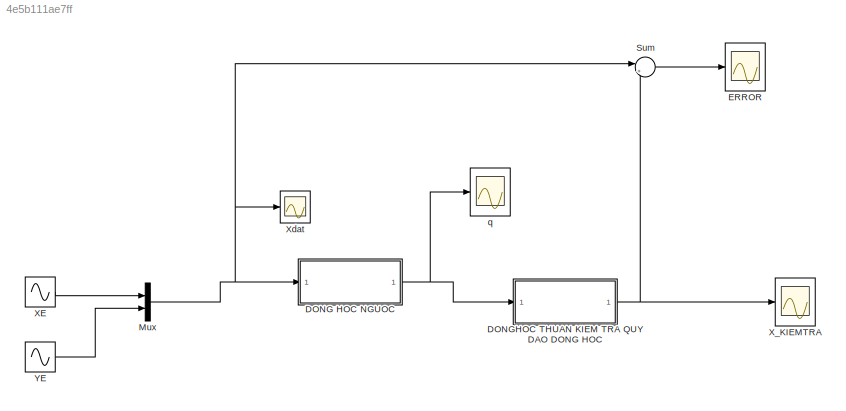
MODEL slx_4e5b111ae7ff
KIND model
CONFIG AbsTol = auto
CONFIG EnableMultiTasking = off
CONFIG FixedStep = auto
CONFIG MaxStep = auto
CONFIG MinStep = auto
CONFIG RelTol = 1e-3
CONFIG SampleTimeConstraint = Unconstrained
CONFIG SolverName = VariableStepAuto
CONFIG StartTime = 0.0
CONFIG StopTime = 10.0
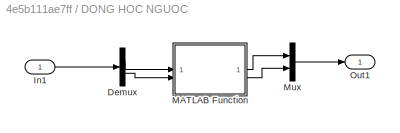
BLOCK [SubSystem] DONG HOC NGUOC
BLOCK [Demux] DONG HOC NGUOC/Demux
  Outputs = 2
BLOCK [Inport] DONG HOC NGUOC/In1
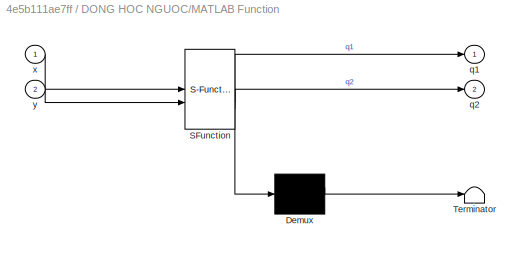
BLOCK [SubSystem] DONG HOC NGUOC/MATLAB Function
  ErrorFcn = Stateflow.Translate.translate
  LibrarySourceBlock = simulink/User-Defined\nFunctions/MATLAB Function
  PermitHierarchicalResolution = ExplicitOnly
  SFBlockType = MATLAB Function
  TreatAsAtomicUnit = on
BLOCK [Demux] DONG HOC NGUOC/MATLAB Function/ Demux 
  Outputs = 1
BLOCK [S-Function] DONG HOC NGUOC/MATLAB Function/ SFunction 
  EnableBusSupport = on
  FunctionName = sf_sfun
  PortCounts = [2 3]
  SFcnIsStateOwnerBlock = off
  SFunctionDeploymentMode = off
  Tag = Stateflow S-Function 2
BLOCK [Terminator] DONG HOC NGUOC/MATLAB Function/ Terminator 
BLOCK [Outport] DONG HOC NGUOC/MATLAB Function/q1
BLOCK [Outport] DONG HOC NGUOC/MATLAB Function/q2
  Port = 2
BLOCK [Inport] DONG HOC NGUOC/MATLAB Function/x
BLOCK [Inport] DONG HOC NGUOC/MATLAB Function/y
  Port = 2
BLOCK [Mux] DONG HOC NGUOC/Mux
  DisplayOption = bar
  Inputs = 2
BLOCK [Outport] DONG HOC NGUOC/Out1
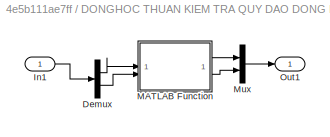
BLOCK [SubSystem] DONGHOC THUAN KIEM TRA QUY DAO DONG HOC
BLOCK [Demux] DONGHOC THUAN KIEM TRA QUY DAO DONG HOC/Demux
  Outputs = 2
BLOCK [Inport] DONGHOC THUAN KIEM TRA QUY DAO DONG HOC/In1
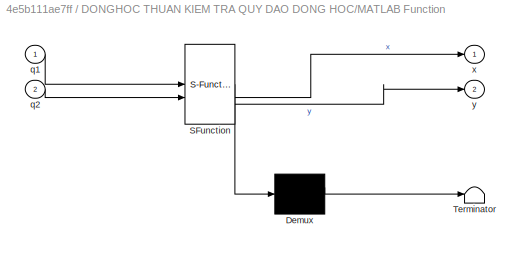
BLOCK [SubSystem] DONGHOC THUAN KIEM TRA QUY DAO DONG HOC/MATLAB Function
  ErrorFcn = Stateflow.Translate.translate
  LibrarySourceBlock = simulink/User-Defined\nFunctions/MATLAB Function
  PermitHierarchicalResolution = ExplicitOnly
  SFBlockType = MATLAB Function
  TreatAsAtomicUnit = on
BLOCK [Demux] DONGHOC THUAN KIEM TRA QUY DAO DONG HOC/MATLAB Function/ Demux 
  Outputs = 1
BLOCK [S-Function] DONGHOC THUAN KIEM TRA QUY DAO DONG HOC/MATLAB Function/ SFunction 
  EnableBusSupport = on
  FunctionName = sf_sfun
  PortCounts = [2 3]
  SFcnIsStateOwnerBlock = off
  SFunctionDeploymentMode = off
  Tag = Stateflow S-Function 1
BLOCK [Terminator] DONGHOC THUAN KIEM TRA QUY DAO DONG HOC/MATLAB Function/ Terminator 
BLOCK [Inport] DONGHOC THUAN KIEM TRA QUY DAO DONG HOC/MATLAB Function/q1
BLOCK [Inport] DONGHOC THUAN KIEM TRA QUY DAO DONG HOC/MATLAB Function/q2
  Port = 2
BLOCK [Outport] DONGHOC THUAN KIEM TRA QUY DAO DONG HOC/MATLAB Function/x
BLOCK [Outport] DONGHOC THUAN KIEM TRA QUY DAO DONG HOC/MATLAB Function/y
  Port = 2
BLOCK [Mux] DONGHOC THUAN KIEM TRA QUY DAO DONG HOC/Mux
  DisplayOption = bar
  Inputs = 2
BLOCK [Outport] DONGHOC THUAN KIEM TRA QUY DAO DONG HOC/Out1
BLOCK [Scope] ERROR
  Floating = off
  NameLocation = right
  NumInputPorts = 1
  ScopeSpecificationString = Simulink.scopes.TimeScopeBlockCfg('CurrentConfiguration', extmgr.ConfigurationSet(extmgr.Configuration('Core','General UI',true),extmgr.Configuration('Core','Source UI',true),extmgr.Configuration('Sources','WiredSimulink',true,'DataLoggingVariableName','ScopeData3'),extmgr.Configuration('Visuals','Time Domain',true,'SerializedDisplays',{struct('MinYLimReal','-3.71697','MaxYLimReal','0.413','YLabel...<+1368ch>
BLOCK [Mux] Mux
  DisplayOption = bar
  Inputs = 2
BLOCK [Sum] Sum
  Inputs = |+-
BLOCK [Sin] XE
  Amplitude = 1.231
  NameLocation = top
  SampleTime = 0
BLOCK [Scope] X_KIEMTRA
  Floating = off
  NameLocation = right
  NumInputPorts = 1
  ScopeSpecificationString = Simulink.scopes.TimeScopeBlockCfg('CurrentConfiguration', extmgr.ConfigurationSet(extmgr.Configuration('Core','General UI',true),extmgr.Configuration('Core','Source UI',true),extmgr.Configuration('Sources','WiredSimulink',true,'DataLoggingVariableName','ScopeData1'),extmgr.Configuration('Visuals','Time Domain',true,'SerializedDisplays',{struct('MinYLimReal','-0.43264','MaxYLimReal','2.13636','YLab...<+1444ch>
BLOCK [Scope] Xdat
  Floating = off
  NumInputPorts = 1
  ScopeSpecificationString = Simulink.scopes.TimeScopeBlockCfg('CurrentConfiguration', extmgr.ConfigurationSet(extmgr.Configuration('Core','General UI',true),extmgr.Configuration('Core','Source UI',true),extmgr.Configuration('Sources','WiredSimulink',true),extmgr.Configuration('Visuals','Time Domain',true,'SerializedDisplays',{struct('MinYLimReal','-1.78125','MaxYLimReal','1.78613','YLabelReal','','MinYLimMag','0.00000','MaxY...<+1356ch>
BLOCK [Sin] YE
  Amplitude = 1.43
  NameLocation = top
  SampleTime = 0
BLOCK [Scope] q
  Floating = off
  NameLocation = right
  NumInputPorts = 1
  ScopeSpecificationString = Simulink.scopes.TimeScopeBlockCfg('CurrentConfiguration', extmgr.ConfigurationSet(extmgr.Configuration('Core','General UI',true),extmgr.Configuration('Core','Source UI',true),extmgr.Configuration('Sources','WiredSimulink',true,'DataLoggingVariableName','ScopeData2'),extmgr.Configuration('Visuals','Time Domain',true,'SerializedDisplays',{struct('MinYLimReal','-3.83522','MaxYLimReal','3.1011','YLabe...<+1392ch>
LINE DONG HOC NGUOC/Demux:1 -> DONG HOC NGUOC/MATLAB Function:1
LINE DONG HOC NGUOC/Demux:2 -> DONG HOC NGUOC/MATLAB Function:2
LINE DONG HOC NGUOC/In1:1 -> DONG HOC NGUOC/Demux:1
LINE DONG HOC NGUOC/MATLAB Function:1 -> DONG HOC NGUOC/Mux:1
LINE DONG HOC NGUOC/MATLAB Function:2 -> DONG HOC NGUOC/Mux:2
LINE DONG HOC NGUOC/Mux:1 -> DONG HOC NGUOC/Out1:1
NET DONG HOC NGUOC:1 -> DONGHOC THUAN KIEM TRA QUY DAO DONG HOC:1, q:1
LINE DONGHOC THUAN KIEM TRA QUY DAO DONG HOC/Demux:1 -> DONGHOC THUAN KIEM TRA QUY DAO DONG HOC/MATLAB Function:1
LINE DONGHOC THUAN KIEM TRA QUY DAO DONG HOC/Demux:2 -> DONGHOC THUAN KIEM TRA QUY DAO DONG HOC/MATLAB Function:2
LINE DONGHOC THUAN KIEM TRA QUY DAO DONG HOC/In1:1 -> DONGHOC THUAN KIEM TRA QUY DAO DONG HOC/Demux:1
LINE DONGHOC THUAN KIEM TRA QUY DAO DONG HOC/MATLAB Function:1 -> DONGHOC THUAN KIEM TRA QUY DAO DONG HOC/Mux:1
LINE DONGHOC THUAN KIEM TRA QUY DAO DONG HOC/MATLAB Function:2 -> DONGHOC THUAN KIEM TRA QUY DAO DONG HOC/Mux:2
LINE DONGHOC THUAN KIEM TRA QUY DAO DONG HOC/Mux:1 -> DONGHOC THUAN KIEM TRA QUY DAO DONG HOC/Out1:1
NET DONGHOC THUAN KIEM TRA QUY DAO DONG HOC:1 -> Sum:2, X_KIEMTRA:1
NET Mux:1 -> DONG HOC NGUOC:1, Sum:1, Xdat:1
LINE Sum:1 -> ERROR:1
LINE XE:1 -> Mux:1
LINE YE:1 -> Mux:2
note: NET lines group one-source signal fan-out (src -> all destinations, sorted); 1:1 wires keep LINE
CHART DONGHOC THUAN KIEM TRA QUY DAO DONG HOC/MATLAB Function states=1 transitions=1
  STATE_LABEL 'eML_blk_kernel()'
  STATE_LABEL 'SCRIPT:\nfunction [x,y]=fcn(q1,q2)\nL1=1;\nL2=1;\nx=L1*cos(q1)+L2*cos(q1+q2);\ny=L1*sin(q1)+L2*sin(q1+q2);\n\nend\n'
CHART DONG HOC NGUOC/MATLAB Function states=1 transitions=1
  STATE_LABEL 'eML_blk_kernel()'
  STATE_LABEL 'SCRIPT:\n\nfunction [q1,q2]=fcn(x,y)\nL1=1;\nL2=1;\nc2=(x^2+y^2-L1^2-L2^2)/(2*L1*L2);\nq2=(-acos(c2));\nD=x^2+y^2;\nDx=(L1+L2*cos(q2))*x+L2*sin(q2)*y;\nc1=Dx/D;\nq1=acos(c1);\nend\n'
CHART  states=0 transitions=0
CHART  states=0 transitions=0
